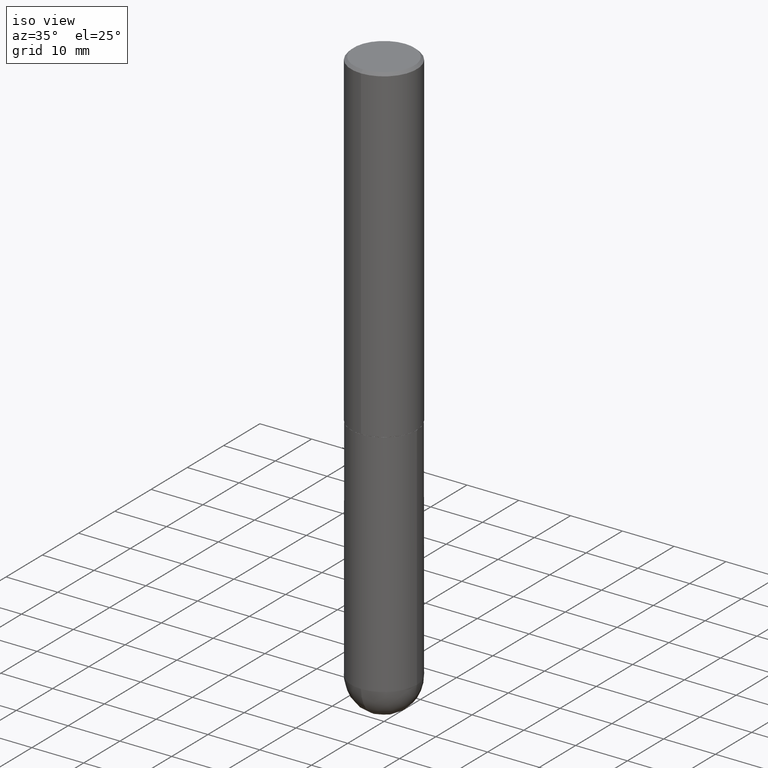
[diagram: clean part render]
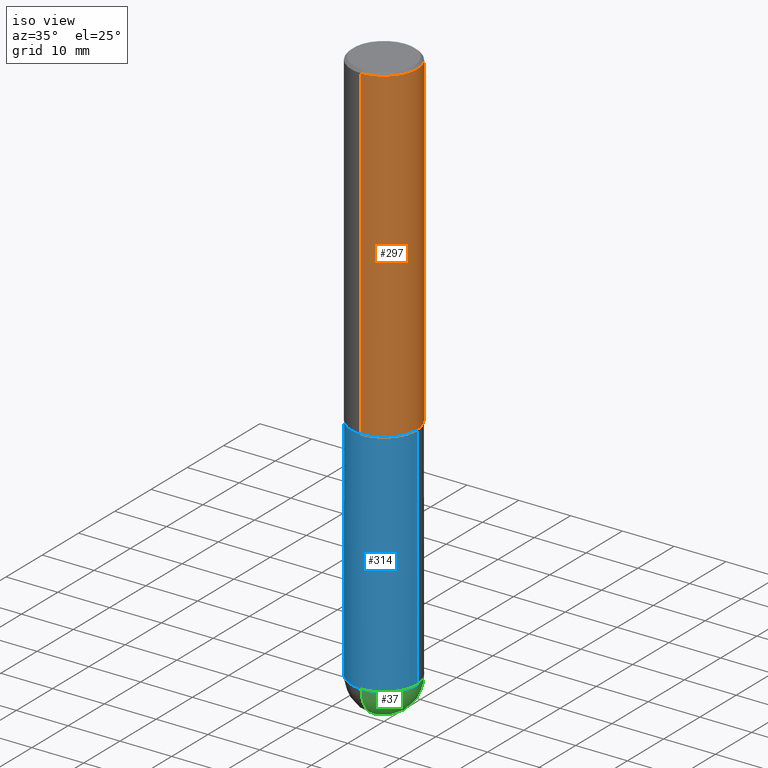
[diagram: same view with three faces highlighted in distinct colors, each labeled with its STEP entity id]
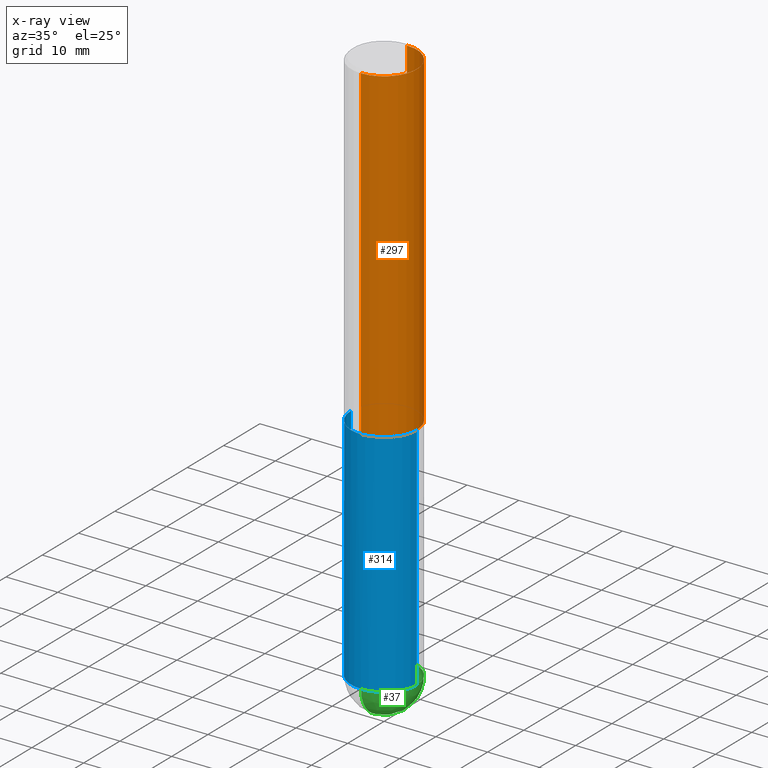
[diagram: x-ray of the same camera — body ghosted, the three highlighted faces saturated]
A machine part, iso view with three faces highlighted in distinct colors.
The next image is the same camera in x-ray (body ghosted, the three faces saturated) — at least one of them is partly hidden behind the body in this view.
Their STEP definitions:

[orange] entity #297 — the highlighted cylindrical surface (partial cylindrical patch) has radius 6.35 mm, axis along (-0, 0, 1).
#10 = DIRECTION ( 'NONE',  ( -2.445109736820922196E-29, 3.491995546609659985E-15, 1.000000000000000000 ) ) ;
#11 = CIRCLE ( 'NONE', #275, 0.2500000000000002776 ) ;
#14 = CYLINDRICAL_SURFACE ( 'NONE', #61, 0.2500000000000001110 ) ;
#24 = EDGE_LOOP ( 'NONE', ( #65, #126, #104, #343 ) ) ;
#61 = AXIS2_PLACEMENT_3D ( 'NONE', #246, #152, #179 ) ;
#64 = CARTESIAN_POINT ( 'NONE',  ( 4.890219473641857704E-31, -6.983991093219337770E-17, -0.02000000000000005593 ) ) ;
#65 = ORIENTED_EDGE ( 'NONE', *, *, #147, .T. ) ;
#78 = CARTESIAN_POINT ( 'NONE',  ( -1.745740669421507316E-15, -0.2500000000000089928, -2.498999999999999222 ) ) ;
#88 = CARTESIAN_POINT ( 'NONE',  ( -1.745740669421567467E-15, -0.2500000000000001110, 8.729988866524153908E-16 ) ) ;
#93 = VERTEX_POINT ( 'NONE', #78 ) ;
#104 = ORIENTED_EDGE ( 'NONE', *, *, #384, .F. ) ;
#126 = ORIENTED_EDGE ( 'NONE', *, *, #190, .T. ) ;
#146 = LINE ( 'NONE', #88, #197 ) ;
#147 = EDGE_CURVE ( 'NONE', #93, #226, #11, .T. ) ;
#152 = DIRECTION ( 'NONE',  ( -2.445109736820922196E-29, 3.491995546609659985E-15, 1.000000000000000000 ) ) ;
#161 = VECTOR ( 'NONE', #213, 39.37007874015748143 ) ;
#168 = CARTESIAN_POINT ( 'NONE',  ( 6.110329232315485644E-29, -8.726496870977541321E-15, -2.499000000000000110 ) ) ;
#179 = DIRECTION ( 'NONE',  ( -6.982962677686266711E-15, -1.000000000000000000, 3.491995546609659985E-15 ) ) ;
#190 = EDGE_CURVE ( 'NONE', #226, #279, #337, .T. ) ;
#197 = VECTOR ( 'NONE', #307, 39.37007874015748143 ) ;
#213 = DIRECTION ( 'NONE',  ( -2.445109736820922196E-29, 3.491995546609659985E-15, 1.000000000000000000 ) ) ;
#226 = VERTEX_POINT ( 'NONE', #306 ) ;
#227 = EDGE_CURVE ( 'NONE', #93, #276, #146, .T. ) ;
#242 = CARTESIAN_POINT ( 'NONE',  ( -1.715124499442882299E-15, -0.2500000000000000555, -0.01999999999999918163 ) ) ;
#246 = CARTESIAN_POINT ( 'NONE',  ( 0.000000000000000000, 0.000000000000000000, 0.000000000000000000 ) ) ;
#273 = FACE_OUTER_BOUND ( 'NONE', #24, .T. ) ;
#275 = AXIS2_PLACEMENT_3D ( 'NONE', #168, #10, #291 ) ;
#276 = VERTEX_POINT ( 'NONE', #242 ) ;
#277 = DIRECTION ( 'NONE',  ( -6.982962677686265922E-15, -1.000000000000000000, 3.500180241882337261E-15 ) ) ;
#279 = VERTEX_POINT ( 'NONE', #303 ) ;
#291 = DIRECTION ( 'NONE',  ( -6.982962677686265922E-15, -1.000000000000000000, 4.370956789862816416E-15 ) ) ;
#297 = ADVANCED_FACE ( 'NONE', ( #273 ), #14, .T. ) ;
#303 = CARTESIAN_POINT ( 'NONE',  ( 1.745740669421566875E-15, 0.2499999999999999167, -0.02000000000000093023 ) ) ;
#306 = CARTESIAN_POINT ( 'NONE',  ( 1.776356839400282414E-15, 0.2499999999999915345, -2.499000000000001442 ) ) ;
#307 = DIRECTION ( 'NONE',  ( -2.445109736820922196E-29, 3.491995546609659985E-15, 1.000000000000000000 ) ) ;
#337 = LINE ( 'NONE', #398, #161 ) ;
#343 = ORIENTED_EDGE ( 'NONE', *, *, #227, .F. ) ;
#370 = AXIS2_PLACEMENT_3D ( 'NONE', #64, #406, #277 ) ;
#384 = EDGE_CURVE ( 'NONE', #276, #279, #385, .T. ) ;
#385 = CIRCLE ( 'NONE', #370, 0.2500000000000000000 ) ;
#398 = CARTESIAN_POINT ( 'NONE',  ( 1.776356839400251254E-15, 0.2500000000000001110, -8.729988866524153908E-16 ) ) ;
#406 = DIRECTION ( 'NONE',  ( -2.445109736820922196E-29, 3.491995546609659985E-15, 1.000000000000000000 ) ) ;

[blue] entity #314 — the highlighted cylindrical surface (partial cylindrical patch) has radius 6.35 mm, axis along (-0, 0, 1).
#4 = DIRECTION ( 'NONE',  ( -2.445468806185136597E-29, 3.491481338843145583E-15, 1.000000000000000000 ) ) ;
#13 = EDGE_CURVE ( 'NONE', #194, #108, #46, .T. ) ;
#15 = LINE ( 'NONE', #148, #128 ) ;
#16 = EDGE_CURVE ( 'NONE', #141, #412, #20, .T. ) ;
#17 = FACE_OUTER_BOUND ( 'NONE', #201, .T. ) ;
#20 = CIRCLE ( 'NONE', #136, 0.2500000000000000000 ) ;
#29 = CARTESIAN_POINT ( 'NONE',  ( 1.039324242628683054E-28, -1.483879569008337040E-14, -4.250000000000000000 ) ) ;
#46 = CIRCLE ( 'NONE', #84, 0.2500000000000000000 ) ;
#52 = DIRECTION ( 'NONE',  ( -2.445468806185136597E-29, 3.491481338843145583E-15, 1.000000000000000000 ) ) ;
#60 = ORIENTED_EDGE ( 'NONE', *, *, #308, .T. ) ;
#67 = DIRECTION ( 'NONE',  ( 1.000000000000000000, -6.982962677686266711E-15, 0.000000000000000000 ) ) ;
#74 = ORIENTED_EDGE ( 'NONE', *, *, #13, .F. ) ;
#84 = AXIS2_PLACEMENT_3D ( 'NONE', #158, #130, #67 ) ;
#87 = CARTESIAN_POINT ( 'NONE',  ( 1.039324242628683054E-28, -1.483879569008337040E-14, -4.250000000000000000 ) ) ;
#90 = AXIS2_PLACEMENT_3D ( 'NONE', #118, #278, #376 ) ;
#99 = LINE ( 'NONE', #222, #111 ) ;
#103 = CARTESIAN_POINT ( 'NONE',  ( 0.2500000000000000000, -1.047444401652943162E-14, -2.500000000000000000 ) ) ;
#108 = VERTEX_POINT ( 'NONE', #103 ) ;
#111 = VECTOR ( 'NONE', #408, 39.37007874015748143 ) ;
#114 = CARTESIAN_POINT ( 'NONE',  ( -0.2500000000000000000, -1.000739267919536563E-14, -2.500000000000000000 ) ) ;
#116 = CIRCLE ( 'NONE', #219, 0.2500000000000000000 ) ;
#117 = CARTESIAN_POINT ( 'NONE',  ( -0.2500000000000000000, -1.000739267919536879E-14, -4.250000000000000000 ) ) ;
#118 = CARTESIAN_POINT ( 'NONE',  ( 0.000000000000000000, 0.000000000000000000, 0.000000000000000000 ) ) ;
#128 = VECTOR ( 'NONE', #366, 39.37007874015748143 ) ;
#130 = DIRECTION ( 'NONE',  ( -2.445468806185136597E-29, 3.491481338843145583E-15, 1.000000000000000000 ) ) ;
#136 = AXIS2_PLACEMENT_3D ( 'NONE', #29, #4, #264 ) ;
#140 = CARTESIAN_POINT ( 'NONE',  ( -1.776356839400148307E-15, -0.2500000000000151545, -4.249999999999999112 ) ) ;
#141 = VERTEX_POINT ( 'NONE', #140 ) ;
#148 = CARTESIAN_POINT ( 'NONE',  ( -0.2500000000000000000, 1.776356839400250465E-15, -1.229733772563726445E-29 ) ) ;
#156 = ORIENTED_EDGE ( 'NONE', *, *, #304, .F. ) ;
#158 = CARTESIAN_POINT ( 'NONE',  ( 6.113672015462842613E-29, -8.728703347107864943E-15, -2.500000000000000000 ) ) ;
#180 = DIRECTION ( 'NONE',  ( 1.000000000000000000, -6.982962677686270655E-15, 0.000000000000000000 ) ) ;
#194 = VERTEX_POINT ( 'NONE', #114 ) ;
#201 = EDGE_LOOP ( 'NONE', ( #156, #60, #345, #379, #74 ) ) ;
#219 = AXIS2_PLACEMENT_3D ( 'NONE', #87, #52, #180 ) ;
#222 = CARTESIAN_POINT ( 'NONE',  ( 0.2500000000000000000, -1.745740669421566678E-15, 1.219044193948983948E-29 ) ) ;
#255 = VERTEX_POINT ( 'NONE', #117 ) ;
#264 = DIRECTION ( 'NONE',  ( 1.000000000000000000, -6.982962677686270655E-15, 0.000000000000000000 ) ) ;
#278 = DIRECTION ( 'NONE',  ( -2.445468806185136597E-29, 3.491481338843145583E-15, 1.000000000000000000 ) ) ;
#304 = EDGE_CURVE ( 'NONE', #255, #194, #15, .T. ) ;
#308 = EDGE_CURVE ( 'NONE', #255, #141, #116, .T. ) ;
#314 = ADVANCED_FACE ( 'NONE', ( #17 ), #399, .T. ) ;
#345 = ORIENTED_EDGE ( 'NONE', *, *, #16, .T. ) ;
#366 = DIRECTION ( 'NONE',  ( -2.445468806185136877E-29, 3.491481338843145188E-15, 1.000000000000000000 ) ) ;
#371 = CARTESIAN_POINT ( 'NONE',  ( 0.2500000000000000000, -1.352949018801718751E-14, -4.250000000000000000 ) ) ;
#376 = DIRECTION ( 'NONE',  ( 1.000000000000000000, -6.982962677686266711E-15, 4.876176775795935793E-29 ) ) ;
#379 = ORIENTED_EDGE ( 'NONE', *, *, #404, .T. ) ;
#399 = CYLINDRICAL_SURFACE ( 'NONE', #90, 0.2500000000000000000 ) ;
#404 = EDGE_CURVE ( 'NONE', #412, #108, #99, .T. ) ;
#408 = DIRECTION ( 'NONE',  ( -2.445468806185136877E-29, 3.491481338843145188E-15, 1.000000000000000000 ) ) ;
#412 = VERTEX_POINT ( 'NONE', #371 ) ;

[green] entity #37 — the highlighted spherical surface has radius 6.35 mm.
#1 = SPHERICAL_SURFACE ( 'NONE', #5, 0.2500000000000001110 ) ;
#4 = DIRECTION ( 'NONE',  ( -2.445468806185136597E-29, 3.491481338843145583E-15, 1.000000000000000000 ) ) ;
#5 = AXIS2_PLACEMENT_3D ( 'NONE', #143, #288, #322 ) ;
#16 = EDGE_CURVE ( 'NONE', #141, #412, #20, .T. ) ;
#20 = CIRCLE ( 'NONE', #136, 0.2500000000000000000 ) ;
#29 = CARTESIAN_POINT ( 'NONE',  ( 1.039324242628683054E-28, -1.483879569008337040E-14, -4.250000000000000000 ) ) ;
#31 = ORIENTED_EDGE ( 'NONE', *, *, #184, .F. ) ;
#32 = CARTESIAN_POINT ( 'NONE',  ( 1.006212264837294429E-28, -1.531297805822341912E-14, -4.250000000000000000 ) ) ;
#37 = ADVANCED_FACE ( 'NONE', ( #356 ), #1, .T. ) ;
#54 = CIRCLE ( 'NONE', #282, 0.2500000000000001110 ) ;
#57 = CARTESIAN_POINT ( 'NONE',  ( 1.745740669421669032E-15, 0.2499999999999849842, -4.250000000000001776 ) ) ;
#68 = ORIENTED_EDGE ( 'NONE', *, *, #166, .T. ) ;
#80 = DIRECTION ( 'NONE',  ( 1.000000000000000000, -6.982962677686265922E-15, 4.883557194083112340E-29 ) ) ;
#86 = CARTESIAN_POINT ( 'NONE',  ( 1.006212264837294429E-28, -1.531297805822341912E-14, -4.250000000000000000 ) ) ;
#96 = DIRECTION ( 'NONE',  ( 1.000000000000000000, -6.982962677686270655E-15, 0.000000000000000000 ) ) ;
#102 = DIRECTION ( 'NONE',  ( -2.445468806185136597E-29, 3.491481338843145583E-15, 1.000000000000000000 ) ) ;
#115 = AXIS2_PLACEMENT_3D ( 'NONE', #86, #216, #392 ) ;
#136 = AXIS2_PLACEMENT_3D ( 'NONE', #29, #4, #264 ) ;
#140 = CARTESIAN_POINT ( 'NONE',  ( -1.776356839400148307E-15, -0.2500000000000151545, -4.249999999999999112 ) ) ;
#141 = VERTEX_POINT ( 'NONE', #140 ) ;
#143 = CARTESIAN_POINT ( 'NONE',  ( 1.006212264837294429E-28, -1.531297805822341912E-14, -4.250000000000000000 ) ) ;
#166 = EDGE_CURVE ( 'NONE', #196, #405, #54, .T. ) ;
#176 = AXIS2_PLACEMENT_3D ( 'NONE', #191, #102, #96 ) ;
#184 = EDGE_CURVE ( 'NONE', #196, #141, #292, .T. ) ;
#191 = CARTESIAN_POINT ( 'NONE',  ( 1.039324242628683054E-28, -1.483879569008337040E-14, -4.250000000000000000 ) ) ;
#196 = VERTEX_POINT ( 'NONE', #332 ) ;
#204 = ORIENTED_EDGE ( 'NONE', *, *, #373, .F. ) ;
#216 = DIRECTION ( 'NONE',  ( -1.000000000000000000, 7.105427357601001070E-15, -4.926315508542082329E-29 ) ) ;
#232 = DIRECTION ( 'NONE',  ( 6.982962677686266711E-15, 1.000000000000000000, 0.000000000000000000 ) ) ;
#237 = ORIENTED_EDGE ( 'NONE', *, *, #16, .F. ) ;
#264 = DIRECTION ( 'NONE',  ( 1.000000000000000000, -6.982962677686270655E-15, 0.000000000000000000 ) ) ;
#282 = AXIS2_PLACEMENT_3D ( 'NONE', #32, #80, #232 ) ;
#288 = DIRECTION ( 'NONE',  ( -1.000000000000000000, 6.982962677686265922E-15, -4.883557194083113462E-29 ) ) ;
#292 = CIRCLE ( 'NONE', #115, 0.2500000000000001110 ) ;
#322 = DIRECTION ( 'NONE',  ( 6.982962677686265922E-15, 1.000000000000000000, -4.370956789862818783E-15 ) ) ;
#332 = CARTESIAN_POINT ( 'NONE',  ( 1.068417942853397052E-28, -1.617054030794486372E-14, -4.500000000000000888 ) ) ;
#356 = FACE_OUTER_BOUND ( 'NONE', #410, .T. ) ;
#358 = CIRCLE ( 'NONE', #176, 0.2500000000000000000 ) ;
#371 = CARTESIAN_POINT ( 'NONE',  ( 0.2500000000000000000, -1.352949018801718751E-14, -4.250000000000000000 ) ) ;
#373 = EDGE_CURVE ( 'NONE', #412, #405, #358, .T. ) ;
#392 = DIRECTION ( 'NONE',  ( -7.105427357601001859E-15, -1.000000000000000000, 0.000000000000000000 ) ) ;
#405 = VERTEX_POINT ( 'NONE', #57 ) ;
#410 = EDGE_LOOP ( 'NONE', ( #31, #68, #204, #237 ) ) ;
#412 = VERTEX_POINT ( 'NONE', #371 ) ;